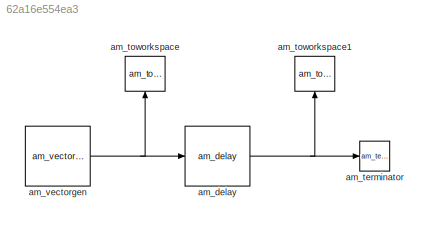
MODEL slx_62a16e554ea3
KIND model
CONFIG AbsTol = auto
CONFIG EnableMultiTasking = off
CONFIG FixedStep = auto
CONFIG MaxStep = auto
CONFIG MinStep = auto
CONFIG RelTol = 1e-3
CONFIG SampleTimeConstraint = Unconstrained
CONFIG SolverName = VariableStepAuto
CONFIG StartTime = 0.0
CONFIG StopTime = 10.0
BLOCK [Reference] am_delay  REF=NSA_DEVS_LOGISTICS/am_delay
  SourceBlock = NSA_DEVS_LOGISTICS/am_delay
  SourceProductName = Logistics
  SourceType = Delay
BLOCK [Reference] am_terminator  REF=NSA_DEVS_LOGISTICS/am_terminator
  SourceBlock = NSA_DEVS_LOGISTICS/am_terminator
  SourceProductName = Logistics
  SourceType = Terminator
BLOCK [Reference] am_toworkspace  REF=NSA_DEVS_SINKS/am_toworkspace
  NameLocation = right
  SourceBlock = NSA_DEVS_SINKS/am_toworkspace
  SourceProductName = Sinks
  SourceType = ToWorkspace
BLOCK [Reference] am_toworkspace1  REF=NSA_DEVS_SINKS/am_toworkspace
  NameLocation = right
  SourceBlock = NSA_DEVS_SINKS/am_toworkspace
  SourceProductName = Sinks
  SourceType = ToWorkspace
BLOCK [Reference] am_vectorgen  REF=NSA_DEVS_SOURCES/am_vectorgen
  SourceBlock = NSA_DEVS_SOURCES/am_vectorgen
  SourceProductName = Sources
  SourceType = Vectorgen
NET am_delay:1 -> am_terminator:1, am_toworkspace1:1
NET am_vectorgen:1 -> am_delay:1, am_toworkspace:1
note: NET lines group one-source signal fan-out (src -> all destinations, sorted); 1:1 wires keep LINE
